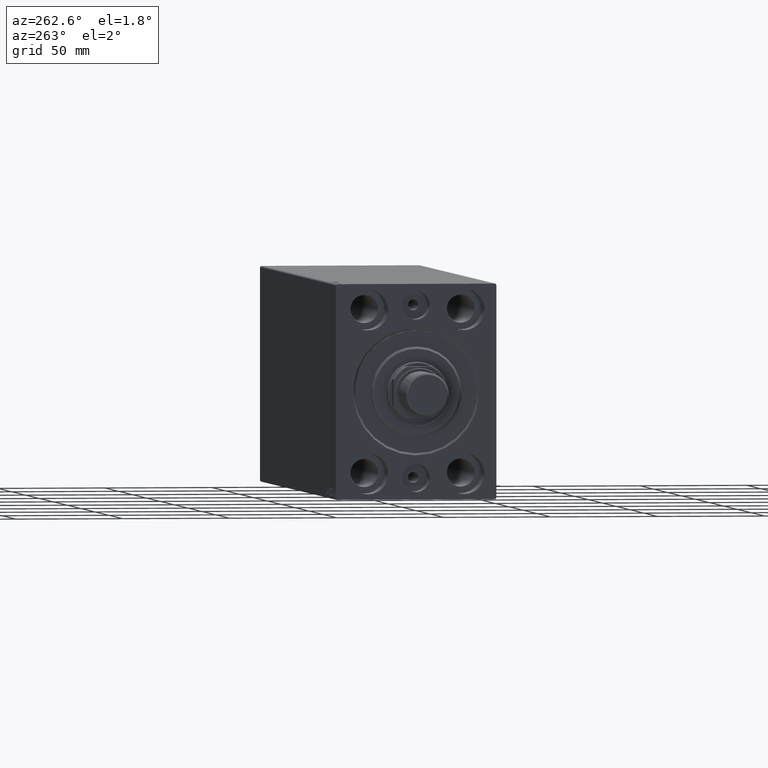
[diagram: clean part render]
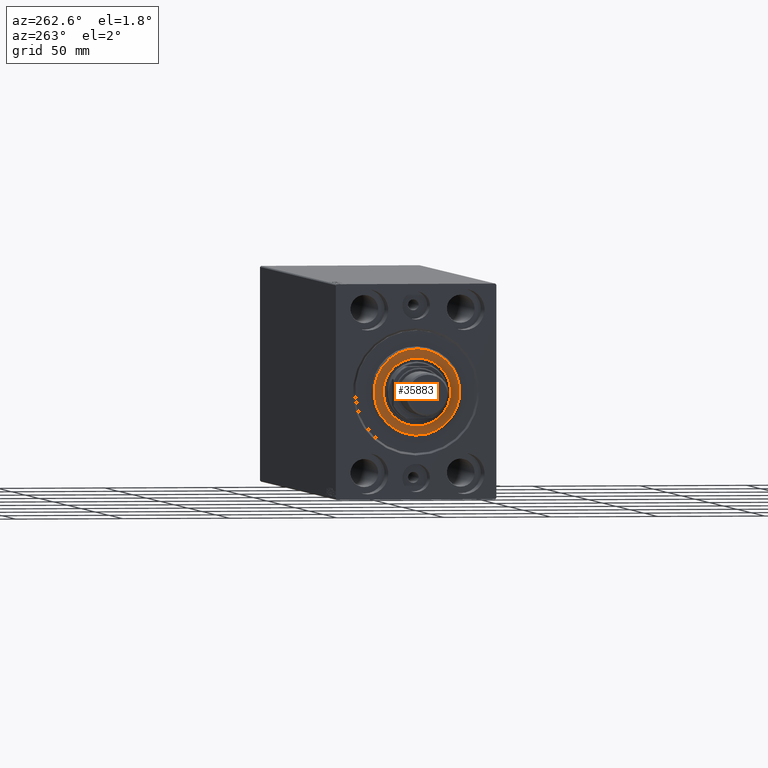
[diagram: same view with one face highlighted and labeled with its STEP entity id]
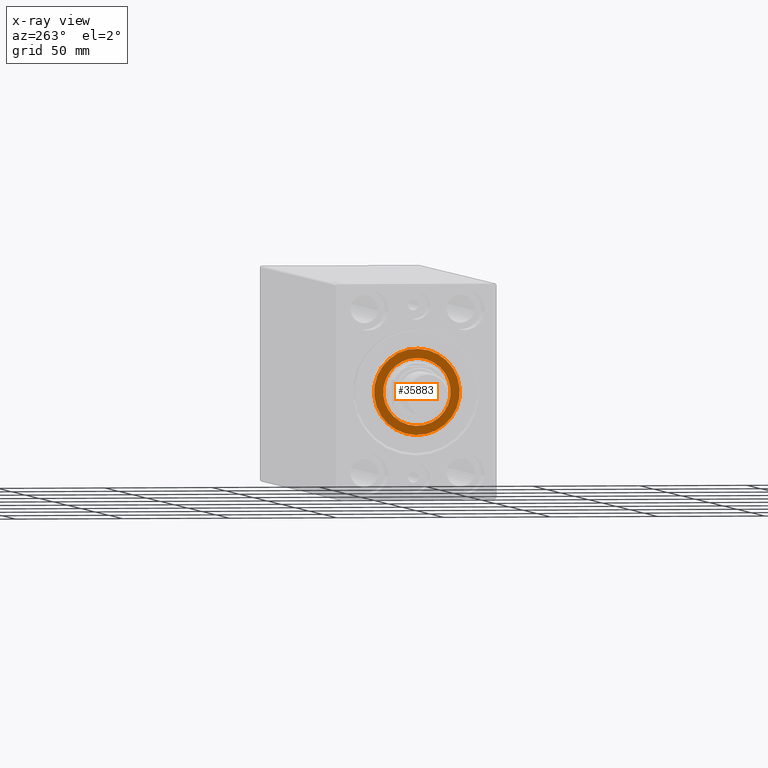
[diagram: x-ray of the same camera — body ghosted, the highlighted face saturated]
A machine part, auxiliary view. The second image highlights one B-rep face of the part: STEP entity #35883.
The next image is the same camera in x-ray: the body ghosted, the highlighted face saturated — about 0% of this face is hidden behind the body in this view.
In plain terms, the highlighted planar face has unit normal (-1, 0, 0).
Its self-contained STEP definition (entity closure, byte-faithful):
#1404 = EDGE_CURVE ( 'NONE', #26332, #35623, #2064, .T. ) ;
#2064 = CIRCLE ( 'NONE', #25656, 15.75000000000000000 ) ;
#3150 = CARTESIAN_POINT ( 'NONE',  ( 3.000000000000000000, 0.000000000000000000, 0.000000000000000000 ) ) ;
#4311 = EDGE_LOOP ( 'NONE', ( #37947, #21608 ) ) ;
#6477 = DIRECTION ( 'NONE',  ( 1.000000000000000000, -0.000000000000000000, 0.000000000000000000 ) ) ;
#6508 = DIRECTION ( 'NONE',  ( 0.000000000000000000, 0.000000000000000000, -1.000000000000000000 ) ) ;
#7323 = CIRCLE ( 'NONE', #35211, 19.99999999999999645 ) ;
#7393 = AXIS2_PLACEMENT_3D ( 'NONE', #42273, #35536, #21249 ) ;
#7666 = DIRECTION ( 'NONE',  ( -1.000000000000000000, 0.000000000000000000, -0.000000000000000000 ) ) ;
#7758 = AXIS2_PLACEMENT_3D ( 'NONE', #3150, #9881, #6508 ) ;
#8040 = FACE_OUTER_BOUND ( 'NONE', #24689, .T. ) ;
#8716 = CARTESIAN_POINT ( 'NONE',  ( 3.000000000000000000, 0.000000000000000000, 19.99999999999999645 ) ) ;
#9781 = EDGE_CURVE ( 'NONE', #35623, #26332, #22902, .T. ) ;
#9881 = DIRECTION ( 'NONE',  ( 1.000000000000000000, -0.000000000000000000, 0.000000000000000000 ) ) ;
#10847 = CARTESIAN_POINT ( 'NONE',  ( 3.000000000000000000, 0.000000000000000000, 0.000000000000000000 ) ) ;
#14070 = ORIENTED_EDGE ( 'NONE', *, *, #15957, .T. ) ;
#14964 = PLANE ( 'NONE',  #7393 ) ;
#15614 = CIRCLE ( 'NONE', #7758, 19.99999999999999645 ) ;
#15957 = EDGE_CURVE ( 'NONE', #34363, #27262, #15614, .T. ) ;
#16572 = CARTESIAN_POINT ( 'NONE',  ( 3.000000000000000000, 0.000000000000000000, 0.000000000000000000 ) ) ;
#18221 = DIRECTION ( 'NONE',  ( -1.000000000000000000, 0.000000000000000000, -0.000000000000000000 ) ) ;
#18618 = AXIS2_PLACEMENT_3D ( 'NONE', #28469, #7666, #38332 ) ;
#21249 = DIRECTION ( 'NONE',  ( 0.000000000000000000, 0.000000000000000000, -1.000000000000000000 ) ) ;
#21608 = ORIENTED_EDGE ( 'NONE', *, *, #9781, .T. ) ;
#22902 = CIRCLE ( 'NONE', #18618, 15.75000000000000000 ) ;
#24689 = EDGE_LOOP ( 'NONE', ( #34658, #14070 ) ) ;
#25656 = AXIS2_PLACEMENT_3D ( 'NONE', #10847, #18221, #42382 ) ;
#26332 = VERTEX_POINT ( 'NONE', #37591 ) ;
#27262 = VERTEX_POINT ( 'NONE', #8716 ) ;
#28469 = CARTESIAN_POINT ( 'NONE',  ( 3.000000000000000000, 0.000000000000000000, 0.000000000000000000 ) ) ;
#29321 = CARTESIAN_POINT ( 'NONE',  ( 3.000000000000000000, 2.510525938252074087E-15, -19.99999999999999645 ) ) ;
#30204 = DIRECTION ( 'NONE',  ( 0.000000000000000000, 0.000000000000000000, -1.000000000000000000 ) ) ;
#30695 = CARTESIAN_POINT ( 'NONE',  ( 3.000000000000000000, 1.928818708657080950E-15, -15.75000000000000000 ) ) ;
#31966 = FACE_BOUND ( 'NONE', #4311, .T. ) ;
#34363 = VERTEX_POINT ( 'NONE', #29321 ) ;
#34658 = ORIENTED_EDGE ( 'NONE', *, *, #37813, .T. ) ;
#35211 = AXIS2_PLACEMENT_3D ( 'NONE', #16572, #6477, #30204 ) ;
#35536 = DIRECTION ( 'NONE',  ( 1.000000000000000000, -0.000000000000000000, 0.000000000000000000 ) ) ;
#35623 = VERTEX_POINT ( 'NONE', #30695 ) ;
#35883 = ADVANCED_FACE ( 'NONE', ( #8040, #31966 ), #14964, .T. ) ;
#37591 = CARTESIAN_POINT ( 'NONE',  ( 3.000000000000000000, 0.000000000000000000, 15.75000000000000000 ) ) ;
#37813 = EDGE_CURVE ( 'NONE', #27262, #34363, #7323, .T. ) ;
#37947 = ORIENTED_EDGE ( 'NONE', *, *, #1404, .T. ) ;
#38332 = DIRECTION ( 'NONE',  ( 0.000000000000000000, 0.000000000000000000, -1.000000000000000000 ) ) ;
#42273 = CARTESIAN_POINT ( 'NONE',  ( 3.000000000000000000, 0.000000000000000000, 0.000000000000000000 ) ) ;
#42382 = DIRECTION ( 'NONE',  ( 0.000000000000000000, 0.000000000000000000, -1.000000000000000000 ) ) ;